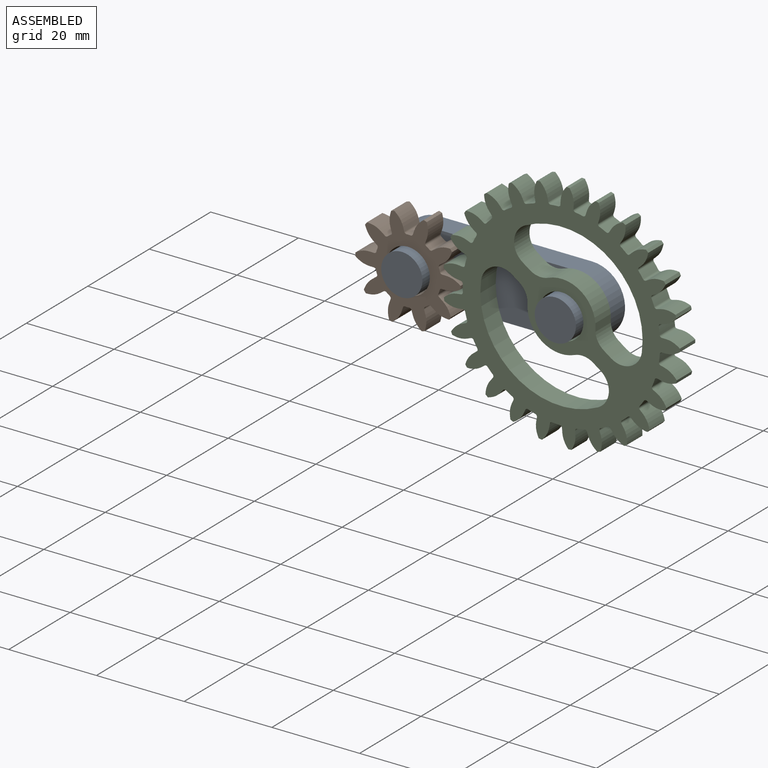
[diagram: assembled view]
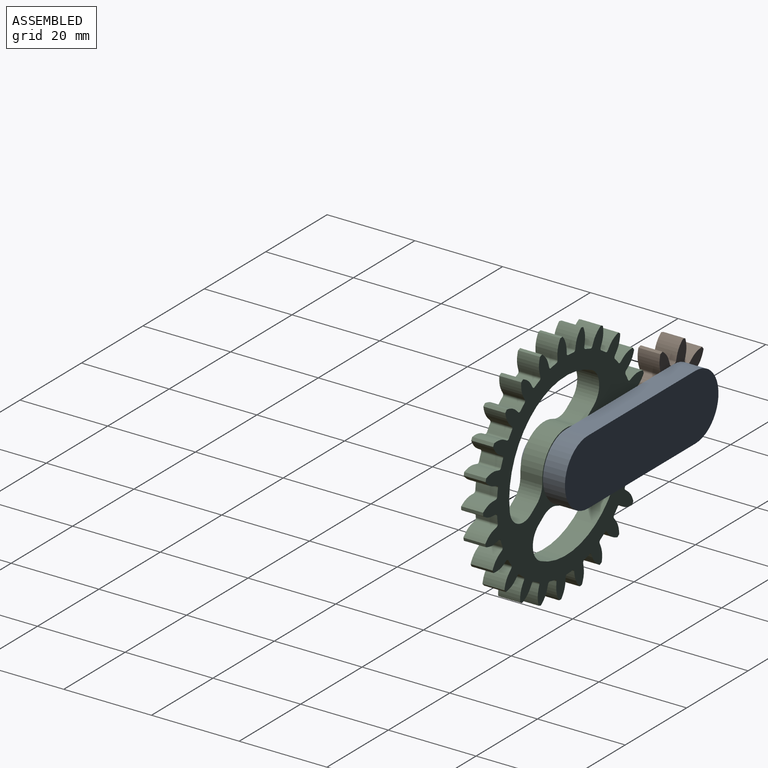
[diagram: assembled view, second angle]
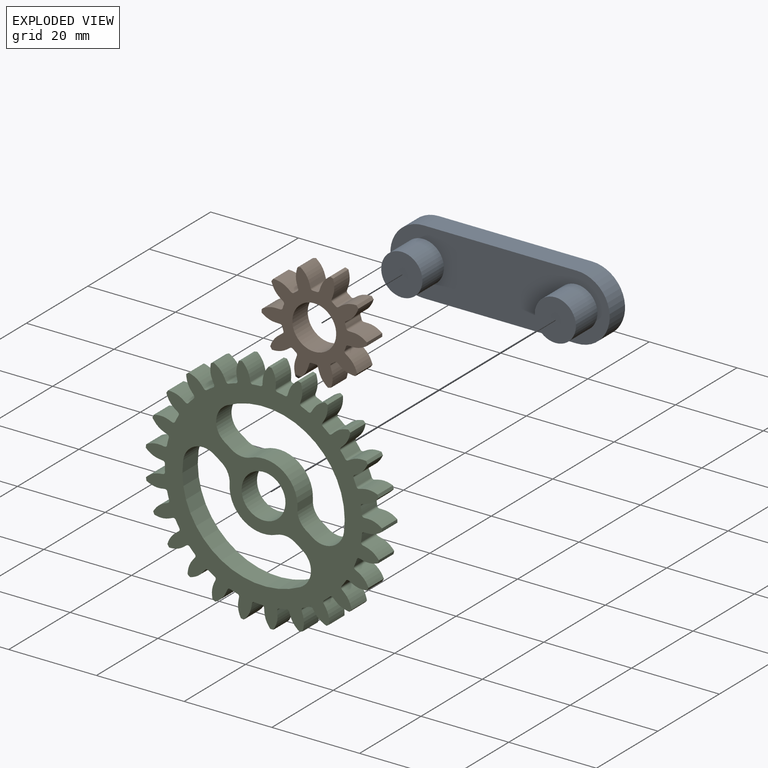
[diagram: exploded view]
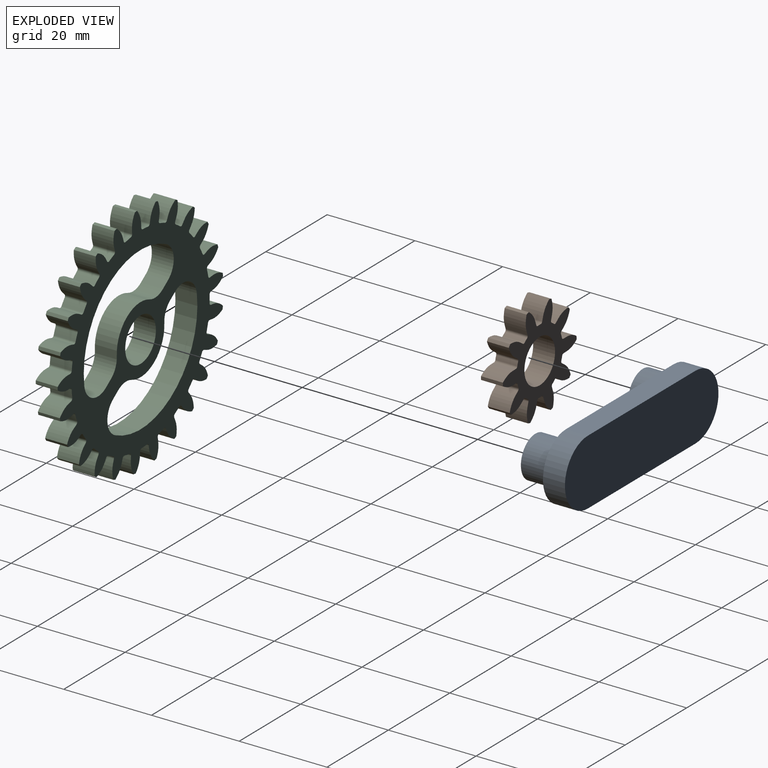
[diagram: exploded view, second angle]
ASSEMBLY  parts=3 mates=2
PART A: 10 faces, bbox 50x12x15 mm
  f0: cylinder r=7.5mm len=15mm, axis (0,1,0), area 117.8mm2, adj f1,f3,f4,f5
  f1: plane 35x5mm, normal (0,0,-1), area 175mm2, adj f0,f2,f4,f5
  f2: cylinder r=7.5mm len=15mm, axis (0,1,0), area 117.8mm2, adj f1,f3,f4,f5
  f3: plane 35x5mm, normal (0,0,1), area 175mm2, adj f0,f2,f4,f5
  f4: plane 50x15mm, normal (0,-1,0), area 562.9mm2, adj f0,f1,f2,f3,f6,f8
  f5: plane 50x15mm, normal (0,1,0), area 701.7mm2, adj f0,f1,f2,f3
  f6: cylinder r=4.7mm len=9.4mm, axis (0,1,0), area 206.7mm2, adj f4,f7
  f7: plane 9.4x9.4mm, normal (0,-1,0), area 69.4mm2, adj f6
  f8: cylinder r=4.7mm len=9.4mm, axis (0,1,0), area 206.7mm2, adj f4,f9
  f9: plane 9.4x9.4mm, normal (0,-1,0), area 69.4mm2, adj f8
PART B: 103 faces, bbox 23x5x24 mm
  f0: cylinder r=7.5mm len=5mm, axis (0,1,0), area 4.6mm2, adj f11,f12,f28,f84
  f1: cylinder r=7.5mm len=5mm, axis (0,1,0), area 4.6mm2, adj f11,f12,f83,f93
  f2: cylinder r=7.5mm len=5mm, axis (0,1,0), area 4.6mm2, adj f11,f12,f92,f102
  f3: cylinder r=7.5mm len=5mm, axis (0,1,0), area 4.6mm2, adj f11,f12,f39,f101
  f4: cylinder r=7.5mm len=5mm, axis (0,1,0), area 4.6mm2, adj f11,f12,f38,f48
  f5: cylinder r=7.5mm len=5mm, axis (0,1,0), area 4.6mm2, adj f11,f12,f47,f57
  f6: cylinder r=7.5mm len=5mm, axis (0,1,0), area 4.6mm2, adj f11,f12,f56,f66
  f7: cylinder r=7.5mm len=5mm, axis (0,1,0), area 4.6mm2, adj f11,f12,f65,f75
  f8: cylinder r=7.5mm len=5mm, axis (0,1,0), area 4.6mm2, adj f11,f12,f30,f74
  f9: cylinder r=7.5mm len=5mm, axis (0,1,0), area 4.6mm2, adj f11,f12,f27,f29
  f10: cylinder r=5mm len=10mm, axis (0,1,0), area 157.1mm2, adj f11,f12
  f11: plane 24x23.04mm, normal (0,-1,0), area 211.4mm2, adj f0,f1,f2,f3,f4,f5,f6,f7
  f12: plane 24x23.04mm, normal (0,1,0), area 211.4mm2, adj f0,f1,f2,f3,f4,f5,f6,f7
  f13: plane 5x0.83mm, normal (-0.81,0,0.59), area 5.1mm2, adj f11,f12,f24,f27
  f14: plane 5x0.83mm, normal (0.81,0,-0.59), area 5.1mm2, adj f11,f12,f23,f28
  f15: cylinder r=10mm len=5mm, axis (0,-1,0), area 4.1mm2, adj f11,f12,f16,f23
  f16: cylinder r=12mm len=5mm, axis (0,-1,0), area 3.7mm2, adj f11,f12,f15,f17
  f17: cylinder r=10mm len=5mm, axis (0,-1,0), area 4.1mm2, adj f11,f12,f16,f24
  f18: cylinder r=10mm len=5mm, axis (0,-1,0), area 4.1mm2, adj f11,f12,f22,f26
  f19: plane 5x1.03mm, normal (-1,0,0), area 5.1mm2, adj f11,f12,f26,f30
  f20: plane 5x1.03mm, normal (1,0,0), area 5.1mm2, adj f11,f12,f25,f29
  f21: cylinder r=10mm len=5mm, axis (0,-1,0), area 4.1mm2, adj f11,f12,f22,f25
  f22: cylinder r=12mm len=5mm, axis (0,-1,0), area 3.7mm2, adj f11,f12,f18,f21
  f23: cylinder r=5mm len=5mm, axis (0,-1,0), area 13.3mm2, adj f11,f12,f14,f15
  f24: cylinder r=5mm len=5mm, axis (0,-1,0), area 13.3mm2, adj f11,f12,f13,f17
  f25: cylinder r=5mm len=5mm, axis (0,-1,0), area 13.3mm2, adj f11,f12,f20,f21
  f26: cylinder r=5mm len=5mm, axis (0,-1,0), area 13.3mm2, adj f11,f12,f18,f19
  f27: cylinder r=0.5mm len=5mm, axis (0,1,0), area 3.3mm2, adj f9,f11,f12,f13
  f28: cylinder r=0.5mm len=5mm, axis (0,1,0), area 3.3mm2, adj f0,f11,f12,f14
  f29: cylinder r=0.5mm len=5mm, axis (0,1,0), area 3.3mm2, adj f9,f11,f12,f20
  f30: cylinder r=0.5mm len=5mm, axis (0,1,0), area 3.3mm2, adj f8,f11,f12,f19
  f31: plane 5x1.03mm, normal (-1,0,0), area 5.1mm2, adj f11,f12,f32,f38
  f32: cylinder r=5mm len=5mm, axis (0,-1,0), area 13.3mm2, adj f11,f12,f31,f33
  f33: cylinder r=10mm len=5mm, axis (0,-1,0), area 4.1mm2, adj f11,f12,f32,f34
  f34: cylinder r=12mm len=5mm, axis (0,-1,0), area 3.7mm2, adj f11,f12,f33,f35
  f35: cylinder r=10mm len=5mm, axis (0,-1,0), area 4.1mm2, adj f11,f12,f34,f36
  f36: cylinder r=5mm len=5mm, axis (0,-1,0), area 13.3mm2, adj f11,f12,f35,f37
  f37: plane 5x1.03mm, normal (1,0,0), area 5.1mm2, adj f11,f12,f36,f39
  f38: cylinder r=0.5mm len=5mm, axis (0,1,0), area 3.3mm2, adj f4,f11,f12,f31
  f39: cylinder r=0.5mm len=5mm, axis (0,1,0), area 3.3mm2, adj f3,f11,f12,f37
  f40: plane 5x0.83mm, normal (-0.81,0,0.59), area 5.1mm2, adj f11,f12,f41,f47
  f41: cylinder r=5mm len=5mm, axis (0,-1,0), area 13.3mm2, adj f11,f12,f40,f42
  f42: cylinder r=10mm len=5mm, axis (0,-1,0), area 4.1mm2, adj f11,f12,f41,f43
  f43: cylinder r=12mm len=5mm, axis (0,-1,0), area 3.7mm2, adj f11,f12,f42,f44
  f44: cylinder r=10mm len=5mm, axis (0,-1,0), area 4.1mm2, adj f11,f12,f43,f45
  f45: cylinder r=5mm len=5mm, axis (0,-1,0), area 13.3mm2, adj f11,f12,f44,f46
  f46: plane 5x0.83mm, normal (0.81,0,-0.59), area 5.1mm2, adj f11,f12,f45,f48
  f47: cylinder r=0.5mm len=5mm, axis (0,1,0), area 3.3mm2, adj f5,f11,f12,f40
  f48: cylinder r=0.5mm len=5mm, axis (0,1,0), area 3.3mm2, adj f4,f11,f12,f46
  f49: plane 5x0.98mm, normal (-0.31,0,0.95), area 5.1mm2, adj f11,f12,f50,f56
  f50: cylinder r=5mm len=5mm, axis (0,-1,0), area 13.3mm2, adj f11,f12,f49,f51
  f51: cylinder r=10mm len=5mm, axis (0,-1,0), area 4.1mm2, adj f11,f12,f50,f52
  f52: cylinder r=12mm len=5mm, axis (0,-1,0), area 3.7mm2, adj f11,f12,f51,f53
  f53: cylinder r=10mm len=5mm, axis (0,-1,0), area 4.1mm2, adj f11,f12,f52,f54
  f54: cylinder r=5mm len=5mm, axis (0,-1,0), area 13.3mm2, adj f11,f12,f53,f55
  f55: plane 5x0.98mm, normal (0.31,0,-0.95), area 5.1mm2, adj f11,f12,f54,f57
  f56: cylinder r=0.5mm len=5mm, axis (0,1,0), area 3.3mm2, adj f6,f11,f12,f49
  f57: cylinder r=0.5mm len=5mm, axis (0,1,0), area 3.3mm2, adj f5,f11,f12,f55
  f58: plane 5x0.98mm, normal (0.31,0,0.95), area 5.1mm2, adj f11,f12,f59,f65
  f59: cylinder r=5mm len=5mm, axis (0,-1,0), area 13.3mm2, adj f11,f12,f58,f60
  f60: cylinder r=10mm len=5mm, axis (0,-1,0), area 4.1mm2, adj f11,f12,f59,f61
  f61: cylinder r=12mm len=5mm, axis (0,-1,0), area 3.7mm2, adj f11,f12,f60,f62
  f62: cylinder r=10mm len=5mm, axis (0,-1,0), area 4.1mm2, adj f11,f12,f61,f63
  f63: cylinder r=5mm len=5mm, axis (0,-1,0), area 13.3mm2, adj f11,f12,f62,f64
  f64: plane 5x0.98mm, normal (-0.31,0,-0.95), area 5.1mm2, adj f11,f12,f63,f66
  f65: cylinder r=0.5mm len=5mm, axis (0,1,0), area 3.3mm2, adj f7,f11,f12,f58
  f66: cylinder r=0.5mm len=5mm, axis (0,1,0), area 3.3mm2, adj f6,f11,f12,f64
  f67: plane 5x0.83mm, normal (0.81,0,0.59), area 5.1mm2, adj f11,f12,f68,f74
  f68: cylinder r=5mm len=5mm, axis (0,-1,0), area 13.3mm2, adj f11,f12,f67,f69
  f69: cylinder r=10mm len=5mm, axis (0,-1,0), area 4.1mm2, adj f11,f12,f68,f70
  f70: cylinder r=12mm len=5mm, axis (0,-1,0), area 3.7mm2, adj f11,f12,f69,f71
  f71: cylinder r=10mm len=5mm, axis (0,-1,0), area 4.1mm2, adj f11,f12,f70,f72
  f72: cylinder r=5mm len=5mm, axis (0,-1,0), area 13.3mm2, adj f11,f12,f71,f73
  f73: plane 5x0.83mm, normal (-0.81,0,-0.59), area 5.1mm2, adj f11,f12,f72,f75
  f74: cylinder r=0.5mm len=5mm, axis (0,1,0), area 3.3mm2, adj f8,f11,f12,f67
  f75: cylinder r=0.5mm len=5mm, axis (0,1,0), area 3.3mm2, adj f7,f11,f12,f73
  f76: plane 5x0.98mm, normal (0.31,0,-0.95), area 5.1mm2, adj f11,f12,f77,f83
  f77: cylinder r=5mm len=5mm, axis (0,-1,0), area 13.3mm2, adj f11,f12,f76,f78
  f78: cylinder r=10mm len=5mm, axis (0,-1,0), area 4.1mm2, adj f11,f12,f77,f79
  f79: cylinder r=12mm len=5mm, axis (0,-1,0), area 3.7mm2, adj f11,f12,f78,f80
  f80: cylinder r=10mm len=5mm, axis (0,-1,0), area 4.1mm2, adj f11,f12,f79,f81
  f81: cylinder r=5mm len=5mm, axis (0,-1,0), area 13.3mm2, adj f11,f12,f80,f82
  f82: plane 5x0.98mm, normal (-0.31,0,0.95), area 5.1mm2, adj f11,f12,f81,f84
  f83: cylinder r=0.5mm len=5mm, axis (0,1,0), area 3.3mm2, adj f1,f11,f12,f76
  f84: cylinder r=0.5mm len=5mm, axis (0,1,0), area 3.3mm2, adj f0,f11,f12,f82
  f85: plane 5x0.98mm, normal (-0.31,0,-0.95), area 5.1mm2, adj f11,f12,f86,f92
  f86: cylinder r=5mm len=5mm, axis (0,-1,0), area 13.3mm2, adj f11,f12,f85,f87
  f87: cylinder r=10mm len=5mm, axis (0,-1,0), area 4.1mm2, adj f11,f12,f86,f88
  f88: cylinder r=12mm len=5mm, axis (0,-1,0), area 3.7mm2, adj f11,f12,f87,f89
  f89: cylinder r=10mm len=5mm, axis (0,-1,0), area 4.1mm2, adj f11,f12,f88,f90
  f90: cylinder r=5mm len=5mm, axis (0,-1,0), area 13.3mm2, adj f11,f12,f89,f91
  f91: plane 5x0.98mm, normal (0.31,0,0.95), area 5.1mm2, adj f11,f12,f90,f93
  f92: cylinder r=0.5mm len=5mm, axis (0,1,0), area 3.3mm2, adj f2,f11,f12,f85
  f93: cylinder r=0.5mm len=5mm, axis (0,1,0), area 3.3mm2, adj f1,f11,f12,f91
  f94: cylinder r=10mm len=5mm, axis (0,-1,0), area 4.1mm2, adj f11,f12,f98,f100
  f95: plane 5x0.83mm, normal (0.81,0,0.59), area 5.1mm2, adj f11,f12,f100,f102
  f96: plane 5x0.83mm, normal (-0.81,0,-0.59), area 5.1mm2, adj f11,f12,f99,f101
  f97: cylinder r=10mm len=5mm, axis (0,-1,0), area 4.1mm2, adj f11,f12,f98,f99
  f98: cylinder r=12mm len=5mm, axis (0,-1,0), area 3.7mm2, adj f11,f12,f94,f97
  f99: cylinder r=5mm len=5mm, axis (0,-1,0), area 13.3mm2, adj f11,f12,f96,f97
  f100: cylinder r=5mm len=5mm, axis (0,-1,0), area 13.3mm2, adj f11,f12,f94,f95
  f101: cylinder r=0.5mm len=5mm, axis (0,1,0), area 3.3mm2, adj f3,f11,f12,f96
  f102: cylinder r=0.5mm len=5mm, axis (0,1,0), area 3.3mm2, adj f2,f11,f12,f95
PART C: 269 faces, bbox 53.9x5x53.8 mm
  f0: plane 53.93x53.83mm, normal (0,-1,0), area 1035.9mm2, adj f2,f3,f4,f5,f6,f7,f8,f9
  f1: plane 53.93x53.83mm, normal (0,1,0), area 1035.9mm2, adj f2,f3,f4,f5,f6,f7,f8,f9
  f2: cylinder r=22.5mm len=5mm, axis (0,1,0), area 8.7mm2, adj f0,f1,f41,f162
  f3: cylinder r=22.5mm len=5mm, axis (0,1,0), area 8.7mm2, adj f0,f1,f161,f171
  f4: cylinder r=22.5mm len=5mm, axis (0,1,0), area 8.7mm2, adj f0,f1,f170,f180
  f5: cylinder r=22.5mm len=5mm, axis (0,1,0), area 8.7mm2, adj f0,f1,f179,f189
  f6: cylinder r=22.5mm len=5mm, axis (0,1,0), area 8.7mm2, adj f0,f1,f188,f198
  f7: cylinder r=22.5mm len=5mm, axis (0,1,0), area 8.7mm2, adj f0,f1,f197,f207
  f8: cylinder r=22.5mm len=5mm, axis (0,1,0), area 8.7mm2, adj f0,f1,f206,f216
  f9: cylinder r=22.5mm len=5mm, axis (0,1,0), area 8.7mm2, adj f0,f1,f215,f225
  f10: cylinder r=22.5mm len=5mm, axis (0,1,0), area 8.7mm2, adj f0,f1,f224,f234
  f11: cylinder r=22.5mm len=5mm, axis (0,1,0), area 8.7mm2, adj f0,f1,f233,f243
  f12: cylinder r=22.5mm len=5mm, axis (0,1,0), area 8.7mm2, adj f0,f1,f242,f252
  f13: cylinder r=22.5mm len=5mm, axis (0,1,0), area 8.7mm2, adj f0,f1,f54,f251
  f14: cylinder r=22.5mm len=5mm, axis (0,1,0), area 8.7mm2, adj f0,f1,f53,f63
  f15: cylinder r=22.5mm len=5mm, axis (0,1,0), area 8.7mm2, adj f0,f1,f62,f72
  f16: cylinder r=22.5mm len=5mm, axis (0,1,0), area 8.7mm2, adj f0,f1,f71,f81
  f17: cylinder r=22.5mm len=5mm, axis (0,1,0), area 8.7mm2, adj f0,f1,f80,f90
  f18: cylinder r=22.5mm len=5mm, axis (0,1,0), area 8.7mm2, adj f0,f1,f89,f99
  f19: cylinder r=22.5mm len=5mm, axis (0,1,0), area 8.7mm2, adj f0,f1,f98,f108
  f20: cylinder r=22.5mm len=5mm, axis (0,1,0), area 8.7mm2, adj f0,f1,f107,f117
  f21: cylinder r=22.5mm len=5mm, axis (0,1,0), area 8.7mm2, adj f0,f1,f116,f126
  f22: cylinder r=22.5mm len=5mm, axis (0,1,0), area 8.7mm2, adj f0,f1,f125,f135
  f23: cylinder r=22.5mm len=5mm, axis (0,1,0), area 8.7mm2, adj f0,f1,f134,f144
  f24: cylinder r=22.5mm len=5mm, axis (0,1,0), area 8.7mm2, adj f0,f1,f143,f153
  f25: cylinder r=22.5mm len=5mm, axis (0,1,0), area 8.7mm2, adj f0,f1,f37,f152
  f26: cylinder r=22.5mm len=5mm, axis (0,1,0), area 8.7mm2, adj f0,f1,f36,f45
  f27: cylinder r=5mm len=10mm, axis (0,1,0), area 157.1mm2, adj f0,f1
  f28: cylinder r=27mm len=5mm, axis (0,-1,0), area 3.6mm2, adj f0,f1,f40,f42
  f29: cylinder r=10mm len=5mm, axis (0,-1,0), area 3.4mm2, adj f0,f1,f33,f35
  f30: plane 5x0.87mm, normal (-1,0,0), area 4.3mm2, adj f0,f1,f35,f37
  f31: plane 5x0.87mm, normal (1,0,0), area 4.3mm2, adj f0,f1,f34,f36
  f32: cylinder r=10mm len=5mm, axis (0,-1,0), area 3.4mm2, adj f0,f1,f33,f34
  f33: cylinder r=27mm len=5mm, axis (0,-1,0), area 3.6mm2, adj f0,f1,f29,f32
  f34: cylinder r=5mm len=5mm, axis (0,-1,0), area 14mm2, adj f0,f1,f31,f32
  f35: cylinder r=5mm len=5mm, axis (0,-1,0), area 14mm2, adj f0,f1,f29,f30
  f36: cylinder r=0.5mm len=5mm, axis (0,1,0), area 3.7mm2, adj f0,f1,f26,f31
  f37: cylinder r=0.5mm len=5mm, axis (0,1,0), area 3.7mm2, adj f0,f1,f25,f30
  f38: plane 5x0.84mm, normal (0.97,0,-0.25), area 4.3mm2, adj f0,f1,f39,f41
  f39: cylinder r=5mm len=5mm, axis (0,-1,0), area 14mm2, adj f0,f1,f38,f40
  f40: cylinder r=10mm len=5mm, axis (0,-1,0), area 3.4mm2, adj f0,f1,f28,f39
  f41: cylinder r=0.5mm len=5mm, axis (0,1,0), area 3.7mm2, adj f0,f1,f2,f38
  f42: cylinder r=10mm len=5mm, axis (0,-1,0), area 3.4mm2, adj f0,f1,f28,f43
  f43: cylinder r=5mm len=5mm, axis (0,-1,0), area 14mm2, adj f0,f1,f42,f44
  f44: plane 5x0.84mm, normal (-0.97,0,0.25), area 4.3mm2, adj f0,f1,f43,f45
  f45: cylinder r=0.5mm len=5mm, axis (0,1,0), area 3.7mm2, adj f0,f1,f26,f44
  f46: plane 5x0.86mm, normal (-0.99,0,0.13), area 4.3mm2, adj f0,f1,f47,f53
  f47: cylinder r=5mm len=5mm, axis (0,-1,0), area 14mm2, adj f0,f1,f46,f48
  f48: cylinder r=10mm len=5mm, axis (0,-1,0), area 3.4mm2, adj f0,f1,f47,f49
  f49: cylinder r=27mm len=5mm, axis (0,-1,0), area 3.6mm2, adj f0,f1,f48,f50
  f50: cylinder r=10mm len=5mm, axis (0,-1,0), area 3.4mm2, adj f0,f1,f49,f51
  f51: cylinder r=5mm len=5mm, axis (0,-1,0), area 14mm2, adj f0,f1,f50,f52
  f52: plane 5x0.86mm, normal (0.99,0,-0.13), area 4.3mm2, adj f0,f1,f51,f54
  f53: cylinder r=0.5mm len=5mm, axis (0,1,0), area 3.7mm2, adj f0,f1,f14,f46
  f54: cylinder r=0.5mm len=5mm, axis (0,1,0), area 3.7mm2, adj f0,f1,f13,f52
  f55: plane 5x0.81mm, normal (-0.93,0,0.37), area 4.3mm2, adj f0,f1,f56,f62
  f56: cylinder r=5mm len=5mm, axis (0,-1,0), area 14mm2, adj f0,f1,f55,f57
  f57: cylinder r=10mm len=5mm, axis (0,-1,0), area 3.4mm2, adj f0,f1,f56,f58
  f58: cylinder r=27mm len=5mm, axis (0,-1,0), area 3.6mm2, adj f0,f1,f57,f59
  f59: cylinder r=10mm len=5mm, axis (0,-1,0), area 3.4mm2, adj f0,f1,f58,f60
  f60: cylinder r=5mm len=5mm, axis (0,-1,0), area 14mm2, adj f0,f1,f59,f61
  f61: plane 5x0.81mm, normal (0.93,0,-0.37), area 4.3mm2, adj f0,f1,f60,f63
  f62: cylinder r=0.5mm len=5mm, axis (0,1,0), area 3.7mm2, adj f0,f1,f15,f55
  f63: cylinder r=0.5mm len=5mm, axis (0,1,0), area 3.7mm2, adj f0,f1,f14,f61
  f64: plane 5x0.7mm, normal (-0.81,0,0.59), area 4.3mm2, adj f0,f1,f65,f71
  f65: cylinder r=5mm len=5mm, axis (0,-1,0), area 14mm2, adj f0,f1,f64,f66
  f66: cylinder r=10mm len=5mm, axis (0,-1,0), area 3.4mm2, adj f0,f1,f65,f67
  f67: cylinder r=27mm len=5mm, axis (0,-1,0), area 3.6mm2, adj f0,f1,f66,f68
  f68: cylinder r=10mm len=5mm, axis (0,-1,0), area 3.4mm2, adj f0,f1,f67,f69
  f69: cylinder r=5mm len=5mm, axis (0,-1,0), area 14mm2, adj f0,f1,f68,f70
  f70: plane 5x0.7mm, normal (0.81,0,-0.59), area 4.3mm2, adj f0,f1,f69,f72
  f71: cylinder r=0.5mm len=5mm, axis (0,1,0), area 3.7mm2, adj f0,f1,f16,f64
  f72: cylinder r=0.5mm len=5mm, axis (0,1,0), area 3.7mm2, adj f0,f1,f15,f70
  f73: plane 5x0.67mm, normal (-0.64,0,0.77), area 4.3mm2, adj f0,f1,f74,f80
  f74: cylinder r=5mm len=5mm, axis (0,-1,0), area 14mm2, adj f0,f1,f73,f75
  f75: cylinder r=10mm len=5mm, axis (0,-1,0), area 3.4mm2, adj f0,f1,f74,f76
  f76: cylinder r=27mm len=5mm, axis (0,-1,0), area 3.6mm2, adj f0,f1,f75,f77
  f77: cylinder r=10mm len=5mm, axis (0,-1,0), area 3.4mm2, adj f0,f1,f76,f78
  f78: cylinder r=5mm len=5mm, axis (0,-1,0), area 14mm2, adj f0,f1,f77,f79
  f79: plane 5x0.67mm, normal (0.64,0,-0.77), area 4.3mm2, adj f0,f1,f78,f81
  f80: cylinder r=0.5mm len=5mm, axis (0,1,0), area 3.7mm2, adj f0,f1,f17,f73
  f81: cylinder r=0.5mm len=5mm, axis (0,1,0), area 3.7mm2, adj f0,f1,f16,f79
  f82: plane 5x0.78mm, normal (-0.43,0,0.9), area 4.3mm2, adj f0,f1,f83,f89
  f83: cylinder r=5mm len=5mm, axis (0,-1,0), area 14mm2, adj f0,f1,f82,f84
  f84: cylinder r=10mm len=5mm, axis (0,-1,0), area 3.4mm2, adj f0,f1,f83,f85
  f85: cylinder r=27mm len=5mm, axis (0,-1,0), area 3.6mm2, adj f0,f1,f84,f86
  f86: cylinder r=10mm len=5mm, axis (0,-1,0), area 3.4mm2, adj f0,f1,f85,f87
  f87: cylinder r=5mm len=5mm, axis (0,-1,0), area 14mm2, adj f0,f1,f86,f88
  f88: plane 5x0.78mm, normal (0.43,0,-0.9), area 4.3mm2, adj f0,f1,f87,f90
  f89: cylinder r=0.5mm len=5mm, axis (0,1,0), area 3.7mm2, adj f0,f1,f18,f82
  f90: cylinder r=0.5mm len=5mm, axis (0,1,0), area 3.7mm2, adj f0,f1,f17,f88
  f91: plane 5x0.85mm, normal (-0.19,0,0.98), area 4.3mm2, adj f0,f1,f92,f98
  f92: cylinder r=5mm len=5mm, axis (0,-1,0), area 14mm2, adj f0,f1,f91,f93
  f93: cylinder r=10mm len=5mm, axis (0,-1,0), area 3.4mm2, adj f0,f1,f92,f94
  f94: cylinder r=27mm len=5mm, axis (0,-1,0), area 3.6mm2, adj f0,f1,f93,f95
  f95: cylinder r=10mm len=5mm, axis (0,-1,0), area 3.4mm2, adj f0,f1,f94,f96
  f96: cylinder r=5mm len=5mm, axis (0,-1,0), area 14mm2, adj f0,f1,f95,f97
  f97: plane 5x0.85mm, normal (0.19,0,-0.98), area 4.3mm2, adj f0,f1,f96,f99
  f98: cylinder r=0.5mm len=5mm, axis (0,1,0), area 3.7mm2, adj f0,f1,f19,f91
  f99: cylinder r=0.5mm len=5mm, axis (0,1,0), area 3.7mm2, adj f0,f1,f18,f97
  f100: plane 5x0.87mm, normal (0.06,0,1), area 4.3mm2, adj f0,f1,f101,f107
  f101: cylinder r=5mm len=5mm, axis (0,-1,0), area 14mm2, adj f0,f1,f100,f102
  f102: cylinder r=10mm len=5mm, axis (0,-1,0), area 3.4mm2, adj f0,f1,f101,f103
  f103: cylinder r=27mm len=5mm, axis (0,-1,0), area 3.6mm2, adj f0,f1,f102,f104
  f104: cylinder r=10mm len=5mm, axis (0,-1,0), area 3.4mm2, adj f0,f1,f103,f105
  f105: cylinder r=5mm len=5mm, axis (0,-1,0), area 14mm2, adj f0,f1,f104,f106
  f106: plane 5x0.87mm, normal (-0.06,0,-1), area 4.3mm2, adj f0,f1,f105,f108
  f107: cylinder r=0.5mm len=5mm, axis (0,1,0), area 3.7mm2, adj f0,f1,f20,f100
  f108: cylinder r=0.5mm len=5mm, axis (0,1,0), area 3.7mm2, adj f0,f1,f19,f106
  f109: plane 5x0.82mm, normal (0.31,0,0.95), area 4.3mm2, adj f0,f1,f110,f116
  f110: cylinder r=5mm len=5mm, axis (0,-1,0), area 14mm2, adj f0,f1,f109,f111
  f111: cylinder r=10mm len=5mm, axis (0,-1,0), area 3.4mm2, adj f0,f1,f110,f112
  f112: cylinder r=27mm len=5mm, axis (0,-1,0), area 3.6mm2, adj f0,f1,f111,f113
  f113: cylinder r=10mm len=5mm, axis (0,-1,0), area 3.4mm2, adj f0,f1,f112,f114
  f114: cylinder r=5mm len=5mm, axis (0,-1,0), area 14mm2, adj f0,f1,f113,f115
  f115: plane 5x0.82mm, normal (-0.31,0,-0.95), area 4.3mm2, adj f0,f1,f114,f117
  f116: cylinder r=0.5mm len=5mm, axis (0,1,0), area 3.7mm2, adj f0,f1,f21,f109
  f117: cylinder r=0.5mm len=5mm, axis (0,1,0), area 3.7mm2, adj f0,f1,f20,f115
  f118: plane 5x0.73mm, normal (0.54,0,0.84), area 4.3mm2, adj f0,f1,f119,f125
  f119: cylinder r=5mm len=5mm, axis (0,-1,0), area 14mm2, adj f0,f1,f118,f120
  f120: cylinder r=10mm len=5mm, axis (0,-1,0), area 3.4mm2, adj f0,f1,f119,f121
  f121: cylinder r=27mm len=5mm, axis (0,-1,0), area 3.6mm2, adj f0,f1,f120,f122
  f122: cylinder r=10mm len=5mm, axis (0,-1,0), area 3.4mm2, adj f0,f1,f121,f123
  f123: cylinder r=5mm len=5mm, axis (0,-1,0), area 14mm2, adj f0,f1,f122,f124
  f124: plane 5x0.73mm, normal (-0.54,0,-0.84), area 4.3mm2, adj f0,f1,f123,f126
  f125: cylinder r=0.5mm len=5mm, axis (0,1,0), area 3.7mm2, adj f0,f1,f22,f118
  f126: cylinder r=0.5mm len=5mm, axis (0,1,0), area 3.7mm2, adj f0,f1,f21,f124
  f127: plane 5x0.63mm, normal (0.73,0,0.68), area 4.3mm2, adj f0,f1,f128,f134
  f128: cylinder r=5mm len=5mm, axis (0,-1,0), area 14mm2, adj f0,f1,f127,f129
  f129: cylinder r=10mm len=5mm, axis (0,-1,0), area 3.4mm2, adj f0,f1,f128,f130
  f130: cylinder r=27mm len=5mm, axis (0,-1,0), area 3.6mm2, adj f0,f1,f129,f131
  f131: cylinder r=10mm len=5mm, axis (0,-1,0), area 3.4mm2, adj f0,f1,f130,f132
  f132: cylinder r=5mm len=5mm, axis (0,-1,0), area 14mm2, adj f0,f1,f131,f133
  f133: plane 5x0.63mm, normal (-0.73,0,-0.68), area 4.3mm2, adj f0,f1,f132,f135
  f134: cylinder r=0.5mm len=5mm, axis (0,1,0), area 3.7mm2, adj f0,f1,f23,f127
  f135: cylinder r=0.5mm len=5mm, axis (0,1,0), area 3.7mm2, adj f0,f1,f22,f133
  f136: plane 5x0.76mm, normal (0.88,0,0.48), area 4.3mm2, adj f0,f1,f137,f143
  f137: cylinder r=5mm len=5mm, axis (0,-1,0), area 14mm2, adj f0,f1,f136,f138
  f138: cylinder r=10mm len=5mm, axis (0,-1,0), area 3.4mm2, adj f0,f1,f137,f139
  f139: cylinder r=27mm len=5mm, axis (0,-1,0), area 3.6mm2, adj f0,f1,f138,f140
  f140: cylinder r=10mm len=5mm, axis (0,-1,0), area 3.4mm2, adj f0,f1,f139,f141
  f141: cylinder r=5mm len=5mm, axis (0,-1,0), area 14mm2, adj f0,f1,f140,f142
  f142: plane 5x0.76mm, normal (-0.88,0,-0.48), area 4.3mm2, adj f0,f1,f141,f144
  f143: cylinder r=0.5mm len=5mm, axis (0,1,0), area 3.7mm2, adj f0,f1,f24,f136
  f144: cylinder r=0.5mm len=5mm, axis (0,1,0), area 3.7mm2, adj f0,f1,f23,f142
  f145: plane 5x0.84mm, normal (0.97,0,0.25), area 4.3mm2, adj f0,f1,f146,f152
  f146: cylinder r=5mm len=5mm, axis (0,-1,0), area 14mm2, adj f0,f1,f145,f147
  f147: cylinder r=10mm len=5mm, axis (0,-1,0), area 3.4mm2, adj f0,f1,f146,f148
  f148: cylinder r=27mm len=5mm, axis (0,-1,0), area 3.6mm2, adj f0,f1,f147,f149
  f149: cylinder r=10mm len=5mm, axis (0,-1,0), area 3.4mm2, adj f0,f1,f148,f150
  f150: cylinder r=5mm len=5mm, axis (0,-1,0), area 14mm2, adj f0,f1,f149,f151
  f151: plane 5x0.84mm, normal (-0.97,0,-0.25), area 4.3mm2, adj f0,f1,f150,f153
  f152: cylinder r=0.5mm len=5mm, axis (0,1,0), area 3.7mm2, adj f0,f1,f25,f145
  f153: cylinder r=0.5mm len=5mm, axis (0,1,0), area 3.7mm2, adj f0,f1,f24,f151
  f154: plane 5x0.76mm, normal (0.88,0,-0.48), area 4.3mm2, adj f0,f1,f155,f161
  f155: cylinder r=5mm len=5mm, axis (0,-1,0), area 14mm2, adj f0,f1,f154,f156
  f156: cylinder r=10mm len=5mm, axis (0,-1,0), area 3.4mm2, adj f0,f1,f155,f157
  f157: cylinder r=27mm len=5mm, axis (0,-1,0), area 3.6mm2, adj f0,f1,f156,f158
  f158: cylinder r=10mm len=5mm, axis (0,-1,0), area 3.4mm2, adj f0,f1,f157,f159
  f159: cylinder r=5mm len=5mm, axis (0,-1,0), area 14mm2, adj f0,f1,f158,f160
  f160: plane 5x0.76mm, normal (-0.88,0,0.48), area 4.3mm2, adj f0,f1,f159,f162
  f161: cylinder r=0.5mm len=5mm, axis (0,1,0), area 3.7mm2, adj f0,f1,f3,f154
  f162: cylinder r=0.5mm len=5mm, axis (0,1,0), area 3.7mm2, adj f0,f1,f2,f160
  f163: plane 5x0.63mm, normal (0.73,0,-0.68), area 4.3mm2, adj f0,f1,f164,f170
  f164: cylinder r=5mm len=5mm, axis (0,-1,0), area 14mm2, adj f0,f1,f163,f165
  f165: cylinder r=10mm len=5mm, axis (0,-1,0), area 3.4mm2, adj f0,f1,f164,f166
  f166: cylinder r=27mm len=5mm, axis (0,-1,0), area 3.6mm2, adj f0,f1,f165,f167
  f167: cylinder r=10mm len=5mm, axis (0,-1,0), area 3.4mm2, adj f0,f1,f166,f168
  f168: cylinder r=5mm len=5mm, axis (0,-1,0), area 14mm2, adj f0,f1,f167,f169
  f169: plane 5x0.63mm, normal (-0.73,0,0.68), area 4.3mm2, adj f0,f1,f168,f171
  f170: cylinder r=0.5mm len=5mm, axis (0,1,0), area 3.7mm2, adj f0,f1,f4,f163
  f171: cylinder r=0.5mm len=5mm, axis (0,1,0), area 3.7mm2, adj f0,f1,f3,f169
  f172: plane 5x0.73mm, normal (0.54,0,-0.84), area 4.3mm2, adj f0,f1,f173,f179
  f173: cylinder r=5mm len=5mm, axis (0,-1,0), area 14mm2, adj f0,f1,f172,f174
  f174: cylinder r=10mm len=5mm, axis (0,-1,0), area 3.4mm2, adj f0,f1,f173,f175
  f175: cylinder r=27mm len=5mm, axis (0,-1,0), area 3.6mm2, adj f0,f1,f174,f176
  f176: cylinder r=10mm len=5mm, axis (0,-1,0), area 3.4mm2, adj f0,f1,f175,f177
  f177: cylinder r=5mm len=5mm, axis (0,-1,0), area 14mm2, adj f0,f1,f176,f178
  f178: plane 5x0.73mm, normal (-0.54,0,0.84), area 4.3mm2, adj f0,f1,f177,f180
  f179: cylinder r=0.5mm len=5mm, axis (0,1,0), area 3.7mm2, adj f0,f1,f5,f172
  f180: cylinder r=0.5mm len=5mm, axis (0,1,0), area 3.7mm2, adj f0,f1,f4,f178
  f181: plane 5x0.82mm, normal (0.31,0,-0.95), area 4.3mm2, adj f0,f1,f182,f188
  f182: cylinder r=5mm len=5mm, axis (0,-1,0), area 14mm2, adj f0,f1,f181,f183
  f183: cylinder r=10mm len=5mm, axis (0,-1,0), area 3.4mm2, adj f0,f1,f182,f184
  f184: cylinder r=27mm len=5mm, axis (0,-1,0), area 3.6mm2, adj f0,f1,f183,f185
  f185: cylinder r=10mm len=5mm, axis (0,-1,0), area 3.4mm2, adj f0,f1,f184,f186
  f186: cylinder r=5mm len=5mm, axis (0,-1,0), area 14mm2, adj f0,f1,f185,f187
  f187: plane 5x0.82mm, normal (-0.31,0,0.95), area 4.3mm2, adj f0,f1,f186,f189
  f188: cylinder r=0.5mm len=5mm, axis (0,1,0), area 3.7mm2, adj f0,f1,f6,f181
  f189: cylinder r=0.5mm len=5mm, axis (0,1,0), area 3.7mm2, adj f0,f1,f5,f187
  f190: plane 5x0.87mm, normal (0.06,0,-1), area 4.3mm2, adj f0,f1,f191,f197
  f191: cylinder r=5mm len=5mm, axis (0,-1,0), area 14mm2, adj f0,f1,f190,f192
  f192: cylinder r=10mm len=5mm, axis (0,-1,0), area 3.4mm2, adj f0,f1,f191,f193
  f193: cylinder r=27mm len=5mm, axis (0,-1,0), area 3.6mm2, adj f0,f1,f192,f194
  f194: cylinder r=10mm len=5mm, axis (0,-1,0), area 3.4mm2, adj f0,f1,f193,f195
  f195: cylinder r=5mm len=5mm, axis (0,-1,0), area 14mm2, adj f0,f1,f194,f196
  f196: plane 5x0.87mm, normal (-0.06,0,1), area 4.3mm2, adj f0,f1,f195,f198
  f197: cylinder r=0.5mm len=5mm, axis (0,1,0), area 3.7mm2, adj f0,f1,f7,f190
  f198: cylinder r=0.5mm len=5mm, axis (0,1,0), area 3.7mm2, adj f0,f1,f6,f196
  f199: plane 5x0.85mm, normal (-0.19,0,-0.98), area 4.3mm2, adj f0,f1,f200,f206
  f200: cylinder r=5mm len=5mm, axis (0,-1,0), area 14mm2, adj f0,f1,f199,f201
  f201: cylinder r=10mm len=5mm, axis (0,-1,0), area 3.4mm2, adj f0,f1,f200,f202
  f202: cylinder r=27mm len=5mm, axis (0,-1,0), area 3.6mm2, adj f0,f1,f201,f203
  f203: cylinder r=10mm len=5mm, axis (0,-1,0), area 3.4mm2, adj f0,f1,f202,f204
  f204: cylinder r=5mm len=5mm, axis (0,-1,0), area 14mm2, adj f0,f1,f203,f205
  f205: plane 5x0.85mm, normal (0.19,0,0.98), area 4.3mm2, adj f0,f1,f204,f207
  f206: cylinder r=0.5mm len=5mm, axis (0,1,0), area 3.7mm2, adj f0,f1,f8,f199
  f207: cylinder r=0.5mm len=5mm, axis (0,1,0), area 3.7mm2, adj f0,f1,f7,f205
  f208: plane 5x0.78mm, normal (-0.43,0,-0.9), area 4.3mm2, adj f0,f1,f209,f215
  f209: cylinder r=5mm len=5mm, axis (0,-1,0), area 14mm2, adj f0,f1,f208,f210
  f210: cylinder r=10mm len=5mm, axis (0,-1,0), area 3.4mm2, adj f0,f1,f209,f211
  f211: cylinder r=27mm len=5mm, axis (0,-1,0), area 3.6mm2, adj f0,f1,f210,f212
  f212: cylinder r=10mm len=5mm, axis (0,-1,0), area 3.4mm2, adj f0,f1,f211,f213
  f213: cylinder r=5mm len=5mm, axis (0,-1,0), area 14mm2, adj f0,f1,f212,f214
  f214: plane 5x0.78mm, normal (0.43,0,0.9), area 4.3mm2, adj f0,f1,f213,f216
  f215: cylinder r=0.5mm len=5mm, axis (0,1,0), area 3.7mm2, adj f0,f1,f9,f208
  f216: cylinder r=0.5mm len=5mm, axis (0,1,0), area 3.7mm2, adj f0,f1,f8,f214
  f217: plane 5x0.67mm, normal (-0.64,0,-0.77), area 4.3mm2, adj f0,f1,f218,f224
  f218: cylinder r=5mm len=5mm, axis (0,-1,0), area 14mm2, adj f0,f1,f217,f219
  f219: cylinder r=10mm len=5mm, axis (0,-1,0), area 3.4mm2, adj f0,f1,f218,f220
  f220: cylinder r=27mm len=5mm, axis (0,-1,0), area 3.6mm2, adj f0,f1,f219,f221
  f221: cylinder r=10mm len=5mm, axis (0,-1,0), area 3.4mm2, adj f0,f1,f220,f222
  f222: cylinder r=5mm len=5mm, axis (0,-1,0), area 14mm2, adj f0,f1,f221,f223
  f223: plane 5x0.67mm, normal (0.64,0,0.77), area 4.3mm2, adj f0,f1,f222,f225
  f224: cylinder r=0.5mm len=5mm, axis (0,1,0), area 3.7mm2, adj f0,f1,f10,f217
  f225: cylinder r=0.5mm len=5mm, axis (0,1,0), area 3.7mm2, adj f0,f1,f9,f223
  f226: plane 5x0.7mm, normal (-0.81,0,-0.59), area 4.3mm2, adj f0,f1,f227,f233
  f227: cylinder r=5mm len=5mm, axis (0,-1,0), area 14mm2, adj f0,f1,f226,f228
  f228: cylinder r=10mm len=5mm, axis (0,-1,0), area 3.4mm2, adj f0,f1,f227,f229
  f229: cylinder r=27mm len=5mm, axis (0,-1,0), area 3.6mm2, adj f0,f1,f228,f230
  f230: cylinder r=10mm len=5mm, axis (0,-1,0), area 3.4mm2, adj f0,f1,f229,f231
  f231: cylinder r=5mm len=5mm, axis (0,-1,0), area 14mm2, adj f0,f1,f230,f232
  f232: plane 5x0.7mm, normal (0.81,0,0.59), area 4.3mm2, adj f0,f1,f231,f234
  f233: cylinder r=0.5mm len=5mm, axis (0,1,0), area 3.7mm2, adj f0,f1,f11,f226
  f234: cylinder r=0.5mm len=5mm, axis (0,1,0), area 3.7mm2, adj f0,f1,f10,f232
  f235: plane 5x0.81mm, normal (-0.93,0,-0.37), area 4.3mm2, adj f0,f1,f236,f242
  f236: cylinder r=5mm len=5mm, axis (0,-1,0), area 14mm2, adj f0,f1,f235,f237
  f237: cylinder r=10mm len=5mm, axis (0,-1,0), area 3.4mm2, adj f0,f1,f236,f238
  f238: cylinder r=27mm len=5mm, axis (0,-1,0), area 3.6mm2, adj f0,f1,f237,f239
  f239: cylinder r=10mm len=5mm, axis (0,-1,0), area 3.4mm2, adj f0,f1,f238,f240
  f240: cylinder r=5mm len=5mm, axis (0,-1,0), area 14mm2, adj f0,f1,f239,f241
  f241: plane 5x0.81mm, normal (0.93,0,0.37), area 4.3mm2, adj f0,f1,f240,f243
  f242: cylinder r=0.5mm len=5mm, axis (0,1,0), area 3.7mm2, adj f0,f1,f12,f235
  f243: cylinder r=0.5mm len=5mm, axis (0,1,0), area 3.7mm2, adj f0,f1,f11,f241
  f244: cylinder r=10mm len=5mm, axis (0,-1,0), area 3.4mm2, adj f0,f1,f248,f250
  f245: plane 5x0.86mm, normal (0.99,0,0.13), area 4.3mm2, adj f0,f1,f250,f252
  f246: plane 5x0.86mm, normal (-0.99,0,-0.13), area 4.3mm2, adj f0,f1,f249,f251
  f247: cylinder r=10mm len=5mm, axis (0,-1,0), area 3.4mm2, adj f0,f1,f248,f249
  f248: cylinder r=27mm len=5mm, axis (0,-1,0), area 3.6mm2, adj f0,f1,f244,f247
  f249: cylinder r=5mm len=5mm, axis (0,-1,0), area 14mm2, adj f0,f1,f246,f247
  f250: cylinder r=5mm len=5mm, axis (0,-1,0), area 14mm2, adj f0,f1,f244,f245
  f251: cylinder r=0.5mm len=5mm, axis (0,1,0), area 3.7mm2, adj f0,f1,f13,f246
  f252: cylinder r=0.5mm len=5mm, axis (0,1,0), area 3.7mm2, adj f0,f1,f12,f245
  f253: plane 5x2.02mm, normal (1,0,0), area 10.1mm2, adj f0,f1,f261,f264
  f254: cylinder r=7.75mm len=13.14mm, axis (0,-1,0), area 78.4mm2, adj f0,f1,f261,f262
  f255: plane 5x2.02mm, normal (1,0,0), area 10.1mm2, adj f0,f1,f262,f263
  f256: cylinder r=18.5mm len=32.77mm, axis (0,-1,0), area 201.3mm2, adj f0,f1,f263,f264
  f257: cylinder r=7.75mm len=13.14mm, axis (0,-1,0), area 78.4mm2, adj f0,f1,f265,f268
  f258: plane 5x2.02mm, normal (-1,0,0), area 10.1mm2, adj f0,f1,f267,f268
  f259: cylinder r=18.5mm len=32.77mm, axis (0,-1,0), area 201.3mm2, adj f0,f1,f266,f267
  f260: plane 5x2.02mm, normal (-1,0,0), area 10.1mm2, adj f0,f1,f265,f266
  f261: cylinder r=4.5mm len=5mm, axis (0,-1,0), area 22.8mm2, adj f0,f1,f253,f254
  f262: cylinder r=4.5mm len=5mm, axis (0,-1,0), area 22.8mm2, adj f0,f1,f254,f255
  f263: cylinder r=4.5mm len=6.59mm, axis (0,-1,0), area 46.2mm2, adj f0,f1,f255,f256
  f264: cylinder r=4.5mm len=6.59mm, axis (0,-1,0), area 46.2mm2, adj f0,f1,f253,f256
  f265: cylinder r=4.5mm len=5mm, axis (0,-1,0), area 22.8mm2, adj f0,f1,f257,f260
  f266: cylinder r=4.5mm len=6.59mm, axis (0,-1,0), area 46.2mm2, adj f0,f1,f259,f260
  f267: cylinder r=4.5mm len=6.59mm, axis (0,-1,0), area 46.2mm2, adj f0,f1,f258,f259
  f268: cylinder r=4.5mm len=5mm, axis (0,-1,0), area 22.8mm2, adj f0,f1,f257,f258
PLACE A at identity fixed
PLACE B rot(axis=(0.9,0,0.45),180deg) t=(0,-10,7.5)mm
PLACE C rot(axis=(0,-1,0),54.5deg) t=(35,-5,7.5)mm
MATE revolute C.f259 <-> A.f2  axis (0,1,0) through (35,-5,7.5)mm
MATE revolute B.f10 <-> A.f6  axis (0,1,0) through (0,-5,7.5)mm
